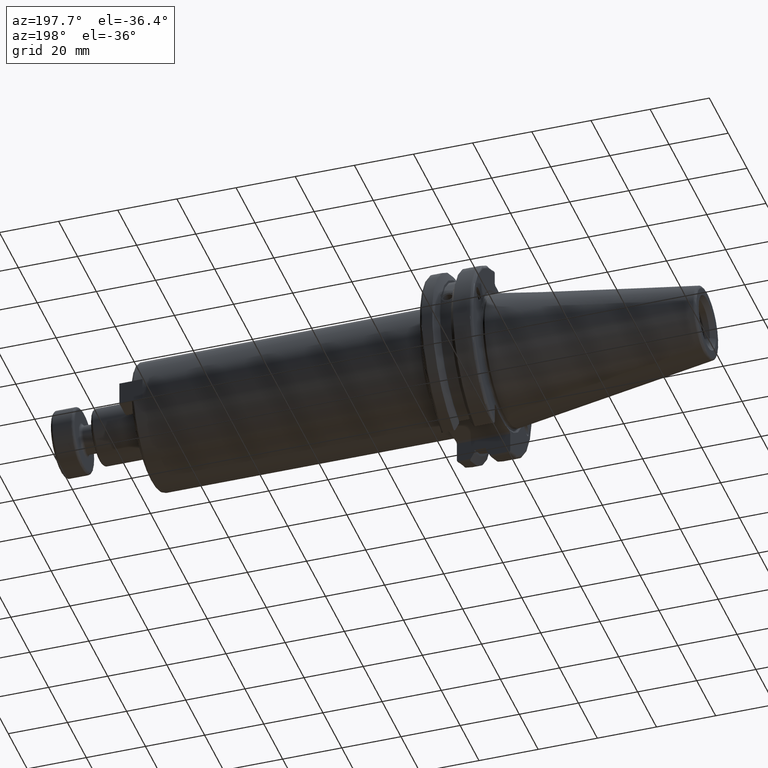
[diagram: clean part render]
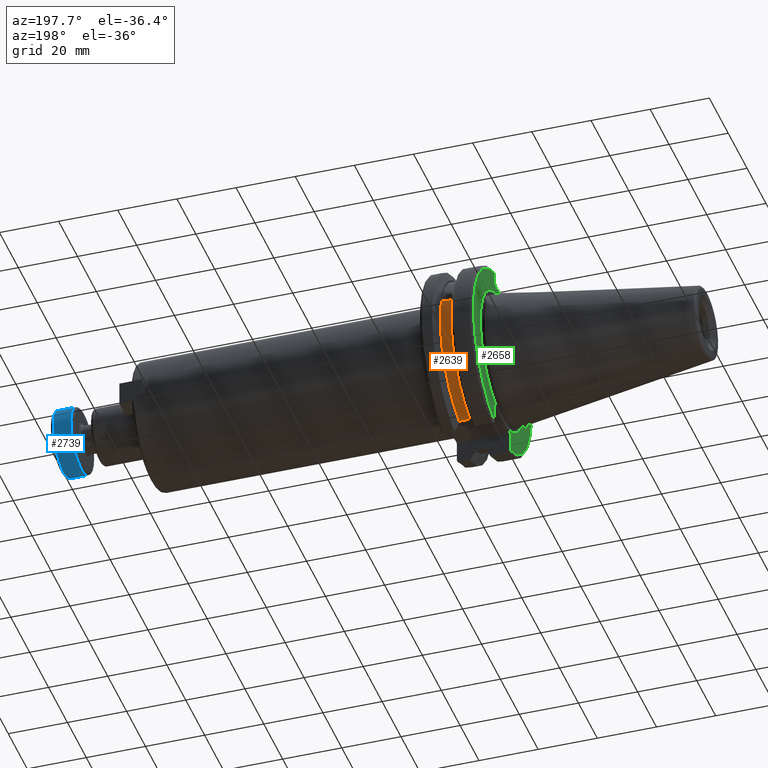
[diagram: same view with three faces highlighted in distinct colors, each labeled with its STEP entity id]
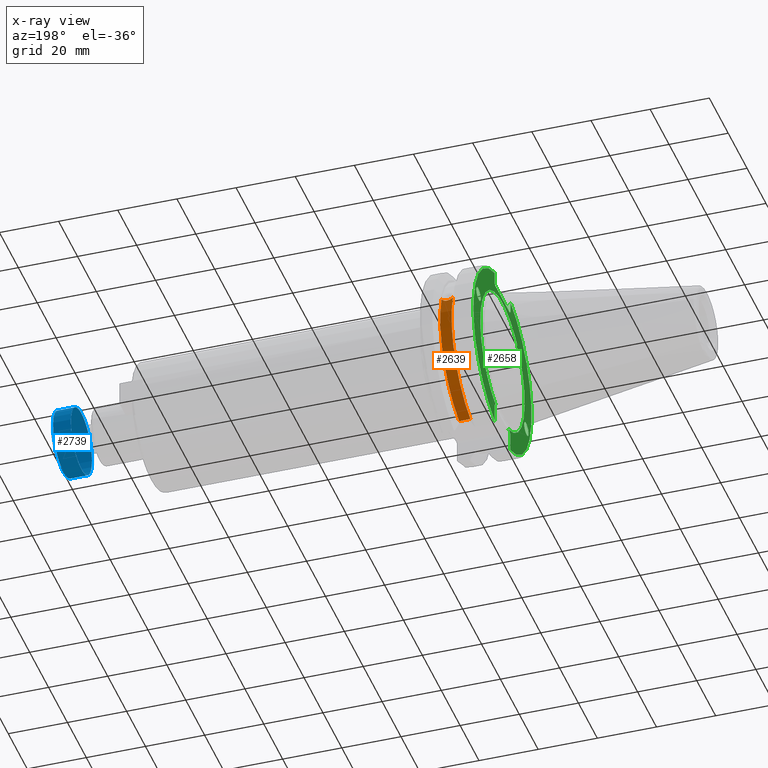
[diagram: x-ray of the same camera — body ghosted, the three highlighted faces saturated]
A machine part, auxiliary view with three faces highlighted in distinct colors.
The next image is the same camera in x-ray (body ghosted, the three faces saturated) — at least one of them is partly hidden behind the body in this view.
Their STEP definitions:

[orange] entity #2639 — the highlighted cylindrical surface (partial cylindrical patch) has radius 28.15 mm, axis along (1, 0, 0).
#134=CYLINDRICAL_SURFACE('',#2975,28.15);
#196=B_SPLINE_CURVE_WITH_KNOTS('',3,(#4519,#4520,#4521,#4522,#4523,#4524,
#4525,#4526,#4527,#4528,#4529,#4530,#4531,#4532),.UNSPECIFIED.,.F.,.F.,
(4,2,2,2,2,2,4),(0.401639126382404,0.474814416953736,0.553950208498303,
0.63308600004287,0.712221791587437,0.791357583132004,0.864532873703334),
 .UNSPECIFIED.);
#293=FACE_OUTER_BOUND('',#459,.T.);
#459=EDGE_LOOP('',(#2004,#2005,#2006,#2007));
#628=LINE('',#4607,#801);
#801=VECTOR('',#3487,10.);
#982=CIRCLE('',#2974,28.15);
#983=CIRCLE('',#2976,28.15);
#1164=VERTEX_POINT('',#4516);
#1165=VERTEX_POINT('',#4518);
#1177=VERTEX_POINT('',#4601);
#1178=VERTEX_POINT('',#4605);
#1470=EDGE_CURVE('',#1165,#1164,#196,.T.);
#1484=EDGE_CURVE('',#1177,#1165,#982,.T.);
#1486=EDGE_CURVE('',#1178,#1164,#983,.T.);
#1487=EDGE_CURVE('',#1178,#1177,#628,.T.);
#2004=ORIENTED_EDGE('',*,*,#1470,.T.);
#2005=ORIENTED_EDGE('',*,*,#1486,.F.);
#2006=ORIENTED_EDGE('',*,*,#1487,.T.);
#2007=ORIENTED_EDGE('',*,*,#1484,.T.);
#2639=ADVANCED_FACE('',(#293),#134,.T.);
#2974=AXIS2_PLACEMENT_3D('',#4602,#3480,#3481);
#2975=AXIS2_PLACEMENT_3D('',#4604,#3483,#3484);
#2976=AXIS2_PLACEMENT_3D('',#4606,#3485,#3486);
#3480=DIRECTION('center_axis',(1.,0.,0.));
#3481=DIRECTION('ref_axis',(0.,0.,-1.));
#3483=DIRECTION('center_axis',(1.,0.,0.));
#3484=DIRECTION('ref_axis',(0.,1.,0.));
#3485=DIRECTION('center_axis',(1.,0.,0.));
#3486=DIRECTION('ref_axis',(0.,0.,-1.));
#3487=DIRECTION('',(-1.,0.,0.));
#4516=CARTESIAN_POINT('',(13.0491,26.734714844398,8.8134852464121));
#4518=CARTESIAN_POINT('',(9.2191,26.734714844398,8.81348524641212));
#4519=CARTESIAN_POINT('Ctrl Pts',(9.2191,26.734714844398,8.81348524641212));
#4520=CARTESIAN_POINT('Ctrl Pts',(9.32533057097183,26.8086519721597,8.58920529678291));
#4521=CARTESIAN_POINT('Ctrl Pts',(9.4768201377051,26.8729987454904,8.3841652999737));
#4522=CARTESIAN_POINT('Ctrl Pts',(9.83557062657411,26.9778908791383,8.04056861831092));
#4523=CARTESIAN_POINT('Ctrl Pts',(10.0716450112988,27.0233016799732,7.88512567185903));
#4524=CARTESIAN_POINT('Ctrl Pts',(10.5890125426388,27.0826966800569,7.6786444840004));
#4525=CARTESIAN_POINT('Ctrl Pts',(10.8703140281848,27.0968804077294,7.62768458768513));
#4526=CARTESIAN_POINT('Ctrl Pts',(11.3978859718152,27.0968804077294,7.62768458768513));
#4527=CARTESIAN_POINT('Ctrl Pts',(11.6791874573612,27.0826966800569,7.6786444840004));
#4528=CARTESIAN_POINT('Ctrl Pts',(12.1965549887012,27.0233016799732,7.88512567185903));
#4529=CARTESIAN_POINT('Ctrl Pts',(12.4326293734259,26.9778908791383,8.04056861831092));
#4530=CARTESIAN_POINT('Ctrl Pts',(12.7913798622949,26.8729987454904,8.38416529997369));
#4531=CARTESIAN_POINT('Ctrl Pts',(12.9428694290282,26.8086519721597,8.5892052967829));
#4532=CARTESIAN_POINT('Ctrl Pts',(13.0491,26.734714844398,8.8134852464121));
#4601=CARTESIAN_POINT('',(9.2191,8.19,-26.932255754021));
#4602=CARTESIAN_POINT('Origin',(9.2191,0.,0.));
#4604=CARTESIAN_POINT('Origin',(11.1341,0.,0.));
#4605=CARTESIAN_POINT('',(13.0491,8.19,-26.932255754021));
#4606=CARTESIAN_POINT('Origin',(13.0491,0.,0.));
#4607=CARTESIAN_POINT('',(11.1341,8.19,-26.932255754021));

[blue] entity #2739 — the highlighted cylindrical surface (bore or boss wall) has radius 11.2 mm, axis along (-1, -0, 0).
#153=CYLINDRICAL_SURFACE('',#3154,11.2);
#393=FACE_OUTER_BOUND('',#572,.T.);
#572=EDGE_LOOP('',(#2494,#2495,#2496,#2497,#2498,#2499));
#748=LINE('',#5211,#921);
#921=VECTOR('',#3963,11.2);
#1056=CIRCLE('',#3152,11.2);
#1057=CIRCLE('',#3153,11.2);
#1058=CIRCLE('',#3155,11.2);
#1059=CIRCLE('',#3156,11.2);
#1319=VERTEX_POINT('',#5204);
#1320=VERTEX_POINT('',#5206);
#1321=VERTEX_POINT('',#5210);
#1322=VERTEX_POINT('',#5212);
#1713=EDGE_CURVE('',#1319,#1320,#1056,.T.);
#1714=EDGE_CURVE('',#1320,#1319,#1057,.T.);
#1715=EDGE_CURVE('',#1320,#1321,#748,.T.);
#1716=EDGE_CURVE('',#1322,#1321,#1058,.T.);
#1717=EDGE_CURVE('',#1321,#1322,#1059,.T.);
#2494=ORIENTED_EDGE('',*,*,#1714,.F.);
#2495=ORIENTED_EDGE('',*,*,#1715,.T.);
#2496=ORIENTED_EDGE('',*,*,#1716,.F.);
#2497=ORIENTED_EDGE('',*,*,#1717,.F.);
#2498=ORIENTED_EDGE('',*,*,#1715,.F.);
#2499=ORIENTED_EDGE('',*,*,#1713,.F.);
#2739=ADVANCED_FACE('',(#393),#153,.T.);
#3152=AXIS2_PLACEMENT_3D('',#5207,#3957,#3958);
#3153=AXIS2_PLACEMENT_3D('',#5208,#3959,#3960);
#3154=AXIS2_PLACEMENT_3D('',#5209,#3961,#3962);
#3155=AXIS2_PLACEMENT_3D('',#5213,#3964,#3965);
#3156=AXIS2_PLACEMENT_3D('',#5214,#3966,#3967);
#3957=DIRECTION('center_axis',(1.,0.,0.));
#3958=DIRECTION('ref_axis',(0.,-1.,1.83697019872103E-16));
#3959=DIRECTION('center_axis',(1.,0.,0.));
#3960=DIRECTION('ref_axis',(0.,-1.,1.83697019872103E-16));
#3961=DIRECTION('center_axis',(1.,0.,0.));
#3962=DIRECTION('ref_axis',(0.,1.,0.));
#3963=DIRECTION('',(-1.,0.,0.));
#3964=DIRECTION('center_axis',(-1.,0.,0.));
#3965=DIRECTION('ref_axis',(0.,-1.,1.83697019872103E-16));
#3966=DIRECTION('center_axis',(-1.,0.,0.));
#3967=DIRECTION('ref_axis',(0.,-1.,1.83697019872103E-16));
#5204=CARTESIAN_POINT('',(7.,-1.37160441504504E-15,11.2));
#5206=CARTESIAN_POINT('',(7.,-11.2,-1.37160441504504E-15));
#5207=CARTESIAN_POINT('Origin',(7.,0.,0.));
#5208=CARTESIAN_POINT('Origin',(7.,0.,0.));
#5209=CARTESIAN_POINT('Origin',(4.,0.,0.));
#5210=CARTESIAN_POINT('',(1.,-11.2,-1.37160441504504E-15));
#5211=CARTESIAN_POINT('',(4.,-11.2,-1.37160441504504E-15));
#5212=CARTESIAN_POINT('',(1.,-1.37160441504504E-15,11.2));
#5213=CARTESIAN_POINT('Origin',(1.,0.,0.));
#5214=CARTESIAN_POINT('Origin',(1.,0.,0.));

[green] entity #2658 — the highlighted planar face has unit normal (-1, 0, 0).
#86=ELLIPSE('',#2939,2.4415491775229,1.99999999999999);
#95=ELLIPSE('',#2983,2.4415491775229,1.99999999999999);
#228=FACE_BOUND('',#480,.T.);
#229=FACE_BOUND('',#481,.T.);
#312=FACE_OUTER_BOUND('',#479,.T.);
#479=EDGE_LOOP('',(#2119,#2120,#2121,#2122,#2123,#2124,#2125,#2126,#2127,
#2128,#2129,#2130,#2131,#2132));
#480=EDGE_LOOP('',(#2133));
#481=EDGE_LOOP('',(#2134));
#638=LINE('',#4681,#811);
#649=LINE('',#4748,#822);
#657=LINE('',#4784,#830);
#661=LINE('',#4852,#834);
#662=LINE('',#4854,#835);
#663=LINE('',#4856,#836);
#664=LINE('',#4857,#837);
#665=LINE('',#4859,#838);
#666=LINE('',#4861,#839);
#667=LINE('',#4865,#840);
#668=LINE('',#4866,#841);
#811=VECTOR('',#3529,10.);
#822=VECTOR('',#3550,10.);
#830=VECTOR('',#3560,10.);
#834=VECTOR('',#3586,10.);
#835=VECTOR('',#3587,10.);
#836=VECTOR('',#3588,10.);
#837=VECTOR('',#3589,10.);
#838=VECTOR('',#3590,10.);
#839=VECTOR('',#3591,10.);
#840=VECTOR('',#3594,10.);
#841=VECTOR('',#3595,10.);
#993=CIRCLE('',#3001,30.75);
#996=CIRCLE('',#3008,30.75);
#997=CIRCLE('',#3010,23.5);
#1141=VERTEX_POINT('',#4416);
#1182=VERTEX_POINT('',#4619);
#1194=VERTEX_POINT('',#4678);
#1195=VERTEX_POINT('',#4680);
#1208=VERTEX_POINT('',#4745);
#1209=VERTEX_POINT('',#4747);
#1217=VERTEX_POINT('',#4776);
#1218=VERTEX_POINT('',#4783);
#1226=VERTEX_POINT('',#4842);
#1227=VERTEX_POINT('',#4851);
#1228=VERTEX_POINT('',#4853);
#1229=VERTEX_POINT('',#4855);
#1230=VERTEX_POINT('',#4858);
#1231=VERTEX_POINT('',#4860);
#1232=VERTEX_POINT('',#4862);
#1233=VERTEX_POINT('',#4864);
#1436=EDGE_CURVE('',#1141,#1141,#86,.T.);
#1493=EDGE_CURVE('',#1182,#1182,#95,.T.);
#1509=EDGE_CURVE('',#1195,#1194,#638,.T.);
#1528=EDGE_CURVE('',#1209,#1208,#649,.T.);
#1540=EDGE_CURVE('',#1218,#1217,#657,.T.);
#1545=EDGE_CURVE('',#1209,#1217,#993,.T.);
#1554=EDGE_CURVE('',#1195,#1226,#996,.T.);
#1556=EDGE_CURVE('',#1227,#1208,#661,.T.);
#1557=EDGE_CURVE('',#1227,#1228,#662,.T.);
#1558=EDGE_CURVE('',#1229,#1228,#663,.T.);
#1559=EDGE_CURVE('',#1229,#1226,#664,.T.);
#1560=EDGE_CURVE('',#1230,#1194,#665,.T.);
#1561=EDGE_CURVE('',#1230,#1231,#666,.T.);
#1562=EDGE_CURVE('',#1231,#1232,#997,.T.);
#1563=EDGE_CURVE('',#1232,#1233,#667,.T.);
#1564=EDGE_CURVE('',#1218,#1233,#668,.T.);
#2119=ORIENTED_EDGE('',*,*,#1545,.F.);
#2120=ORIENTED_EDGE('',*,*,#1528,.T.);
#2121=ORIENTED_EDGE('',*,*,#1556,.F.);
#2122=ORIENTED_EDGE('',*,*,#1557,.T.);
#2123=ORIENTED_EDGE('',*,*,#1558,.F.);
#2124=ORIENTED_EDGE('',*,*,#1559,.T.);
#2125=ORIENTED_EDGE('',*,*,#1554,.F.);
#2126=ORIENTED_EDGE('',*,*,#1509,.T.);
#2127=ORIENTED_EDGE('',*,*,#1560,.F.);
#2128=ORIENTED_EDGE('',*,*,#1561,.T.);
#2129=ORIENTED_EDGE('',*,*,#1562,.T.);
#2130=ORIENTED_EDGE('',*,*,#1563,.T.);
#2131=ORIENTED_EDGE('',*,*,#1564,.F.);
#2132=ORIENTED_EDGE('',*,*,#1540,.T.);
#2133=ORIENTED_EDGE('',*,*,#1436,.T.);
#2134=ORIENTED_EDGE('',*,*,#1493,.T.);
#2537=PLANE('',#3009);
#2658=ADVANCED_FACE('',(#312,#228,#229),#2537,.T.);
#2939=AXIS2_PLACEMENT_3D('',#4418,#3399,#3400);
#2983=AXIS2_PLACEMENT_3D('',#4621,#3503,#3504);
#3001=AXIS2_PLACEMENT_3D('',#4806,#3566,#3567);
#3008=AXIS2_PLACEMENT_3D('',#4843,#3582,#3583);
#3009=AXIS2_PLACEMENT_3D('',#4850,#3584,#3585);
#3010=AXIS2_PLACEMENT_3D('',#4863,#3592,#3593);
#3399=DIRECTION('center_axis',(1.,0.,0.));
#3400=DIRECTION('ref_axis',(0.,-0.939692620785908,-0.342020143325669));
#3503=DIRECTION('center_axis',(1.,0.,0.));
#3504=DIRECTION('ref_axis',(0.,0.939692620785908,0.342020143325669));
#3529=DIRECTION('',(0.,0.,1.));
#3550=DIRECTION('',(0.,0.,-1.));
#3560=DIRECTION('',(0.,0.,-1.));
#3566=DIRECTION('center_axis',(1.,0.,0.));
#3567=DIRECTION('ref_axis',(0.,-1.,1.60812264967664E-16));
#3582=DIRECTION('center_axis',(1.,0.,0.));
#3583=DIRECTION('ref_axis',(0.,1.,1.60812264967664E-16));
#3584=DIRECTION('center_axis',(-1.,0.,0.));
#3585=DIRECTION('ref_axis',(0.,0.,1.));
#3586=DIRECTION('',(0.,-0.70710678118655,0.707106781186545));
#3587=DIRECTION('',(0.,1.,0.));
#3588=DIRECTION('',(0.,-0.707106781186549,-0.707106781186546));
#3589=DIRECTION('',(0.,0.,1.));
#3590=DIRECTION('',(0.,0.707106781186549,-0.707106781186546));
#3591=DIRECTION('',(0.,-1.,0.));
#3592=DIRECTION('center_axis',(1.,0.,0.));
#3593=DIRECTION('ref_axis',(0.,0.,-1.));
#3594=DIRECTION('',(0.,-1.,0.));
#3595=DIRECTION('',(0.,0.707106781186549,0.707106781186546));
#4416=CARTESIAN_POINT('',(1.,-23.0773950158154,-8.39948487016));
#4418=CARTESIAN_POINT('Origin',(1.,-25.3717007612195,-9.23454386979305));
#4619=CARTESIAN_POINT('',(1.,23.0773950158154,8.39948487016001));
#4621=CARTESIAN_POINT('Origin',(1.,25.3717007612195,9.23454386979306));
#4678=CARTESIAN_POINT('',(1.,8.18999999999999,-23.1));
#4680=CARTESIAN_POINT('',(1.,8.18999999999999,-29.6392712461019));
#4681=CARTESIAN_POINT('',(1.,8.18999999999999,-11.3));
#4745=CARTESIAN_POINT('',(1.,-8.18999999999999,25.5));
#4747=CARTESIAN_POINT('',(1.,-8.18999999999999,29.6392712461019));
#4748=CARTESIAN_POINT('',(1.,-8.18999999999999,12.5));
#4776=CARTESIAN_POINT('',(1.,-8.19,-29.6392712461019));
#4783=CARTESIAN_POINT('',(1.,-8.19,-23.1));
#4784=CARTESIAN_POINT('',(1.,-8.19,-11.3));
#4806=CARTESIAN_POINT('Origin',(1.,0.,0.));
#4842=CARTESIAN_POINT('',(1.,8.19,29.6392712461019));
#4843=CARTESIAN_POINT('Origin',(1.,0.,0.));
#4850=CARTESIAN_POINT('Origin',(1.,31.75,0.));
#4851=CARTESIAN_POINT('',(1.,-7.68999999999999,25.));
#4852=CARTESIAN_POINT('',(1.,8.29500000000007,9.01500000000004));
#4853=CARTESIAN_POINT('',(1.,7.69,25.));
#4854=CARTESIAN_POINT('',(1.,15.875,25.));
#4855=CARTESIAN_POINT('',(1.,8.19,25.5));
#4856=CARTESIAN_POINT('',(1.,7.58000000000002,24.89));
#4857=CARTESIAN_POINT('',(1.,8.19,12.5));
#4858=CARTESIAN_POINT('',(1.,7.69,-22.6));
#4859=CARTESIAN_POINT('',(0.999999999999999,8.18000000000002,-23.09));
#4860=CARTESIAN_POINT('',(0.999999999999997,6.4412731660752,-22.6));
#4861=CARTESIAN_POINT('',(1.,15.875,-22.6));
#4862=CARTESIAN_POINT('',(1.,-6.44127316607517,-22.6));
#4863=CARTESIAN_POINT('Origin',(1.,0.,0.));
#4864=CARTESIAN_POINT('',(1.,-7.69,-22.6));
#4865=CARTESIAN_POINT('',(1.,15.875,-22.6));
#4866=CARTESIAN_POINT('',(1.,7.69500000000004,-7.21500000000002));